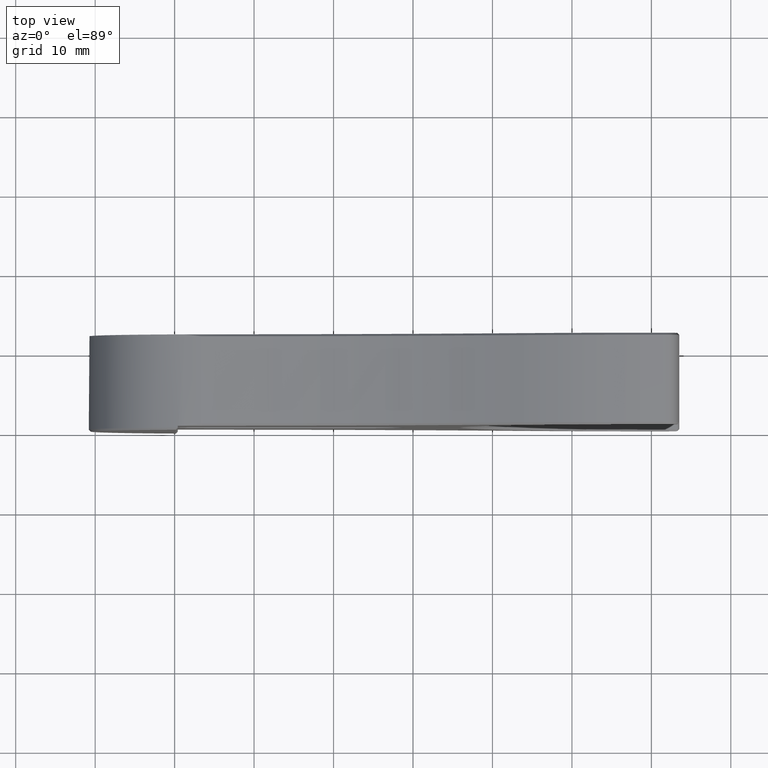
[diagram: clean part render]
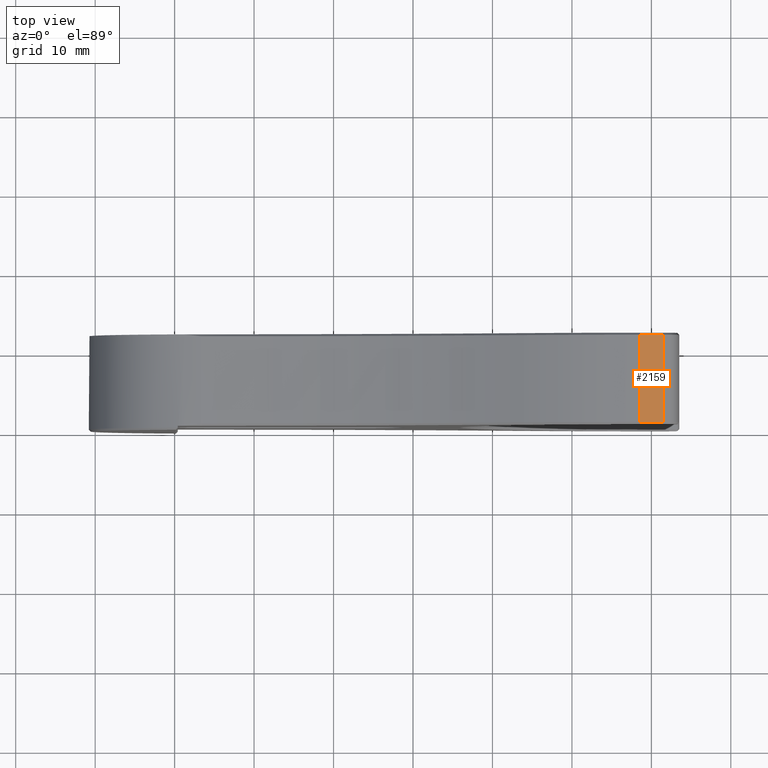
[diagram: same view with one face highlighted and labeled with its STEP entity id]
A machine part, top view. The second image highlights one B-rep face of the part: STEP entity #2159.
In plain terms, the highlighted planar face has unit normal (-0, 0, -1).
Its self-contained STEP definition (entity closure, byte-faithful):
#75 = FACE_OUTER_BOUND ( 'NONE', #2363, .T. ) ;
#171 = LINE ( 'NONE', #2431, #1357 ) ;
#448 = ORIENTED_EDGE ( 'NONE', *, *, #678, .T. ) ;
#522 = DIRECTION ( 'NONE',  ( -1.000000000000000000, -0.000000000000000000, 1.445602896647339410E-16 ) ) ;
#551 = PLANE ( 'NONE',  #987 ) ;
#596 = VERTEX_POINT ( 'NONE', #2013 ) ;
#678 = EDGE_CURVE ( 'NONE', #596, #3201, #1034, .T. ) ;
#764 = ORIENTED_EDGE ( 'NONE', *, *, #2686, .F. ) ;
#788 = EDGE_CURVE ( 'NONE', #3063, #596, #2410, .T. ) ;
#818 = CARTESIAN_POINT ( 'NONE',  ( 3.500000000000005329, 12.00000000000000000, 26.49999999999999645 ) ) ;
#901 = DIRECTION ( 'NONE',  ( -0.000000000000000000, 1.000000000000000000, -0.000000000000000000 ) ) ;
#987 = AXIS2_PLACEMENT_3D ( 'NONE', #818, #3115, #1066 ) ;
#1034 = LINE ( 'NONE', #2329, #2456 ) ;
#1066 = DIRECTION ( 'NONE',  ( -1.000000000000000000, 0.000000000000000000, 1.445602896647339410E-16 ) ) ;
#1127 = LINE ( 'NONE', #3158, #2994 ) ;
#1308 = ORIENTED_EDGE ( 'NONE', *, *, #788, .T. ) ;
#1333 = CARTESIAN_POINT ( 'NONE',  ( 1.500000000000005329, 0.7500000000000006661, 26.49999999999999645 ) ) ;
#1357 = VECTOR ( 'NONE', #2741, 1000.000000000000000 ) ;
#1803 = ORIENTED_EDGE ( 'NONE', *, *, #2821, .T. ) ;
#1982 = CARTESIAN_POINT ( 'NONE',  ( -1.499999999999993561, 11.75000000000002842, 26.50000000000000711 ) ) ;
#2013 = CARTESIAN_POINT ( 'NONE',  ( 1.500000000000005329, 11.75000000000002842, 26.49999999999999645 ) ) ;
#2148 = CARTESIAN_POINT ( 'NONE',  ( 1.500000000000005329, 12.00000000000000000, 26.49999999999999645 ) ) ;
#2159 = ADVANCED_FACE ( 'NONE', ( #75 ), #551, .F. ) ;
#2329 = CARTESIAN_POINT ( 'NONE',  ( -1.499999999999993561, 11.75000000000002842, 26.49999999999999645 ) ) ;
#2363 = EDGE_LOOP ( 'NONE', ( #764, #1803, #1308, #448 ) ) ;
#2410 = LINE ( 'NONE', #2148, #2673 ) ;
#2431 = CARTESIAN_POINT ( 'NONE',  ( 1.500000000000005329, 0.7500000000000006661, 26.49999999999999645 ) ) ;
#2456 = VECTOR ( 'NONE', #522, 1000.000000000000000 ) ;
#2625 = VERTEX_POINT ( 'NONE', #2858 ) ;
#2673 = VECTOR ( 'NONE', #901, 1000.000000000000000 ) ;
#2686 = EDGE_CURVE ( 'NONE', #2625, #3201, #1127, .T. ) ;
#2741 = DIRECTION ( 'NONE',  ( 1.000000000000000000, 0.000000000000000000, -1.445602896647339410E-16 ) ) ;
#2821 = EDGE_CURVE ( 'NONE', #2625, #3063, #171, .T. ) ;
#2858 = CARTESIAN_POINT ( 'NONE',  ( -1.499999999999993561, 0.7500000000000006661, 26.50000000000000711 ) ) ;
#2994 = VECTOR ( 'NONE', #3140, 1000.000000000000000 ) ;
#3063 = VERTEX_POINT ( 'NONE', #1333 ) ;
#3115 = DIRECTION ( 'NONE',  ( -1.445602896647339410E-16, 0.000000000000000000, -1.000000000000000000 ) ) ;
#3140 = DIRECTION ( 'NONE',  ( -0.000000000000000000, 1.000000000000000000, -0.000000000000000000 ) ) ;
#3158 = CARTESIAN_POINT ( 'NONE',  ( -1.499999999999993561, 0.000000000000000000, 26.50000000000000711 ) ) ;
#3201 = VERTEX_POINT ( 'NONE', #1982 ) ;